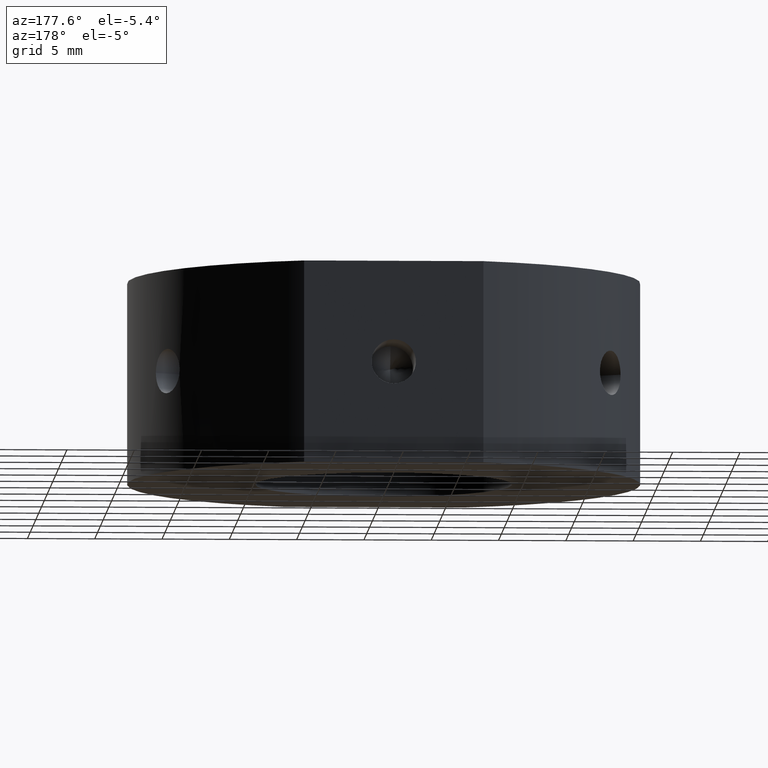
[diagram: clean part render]
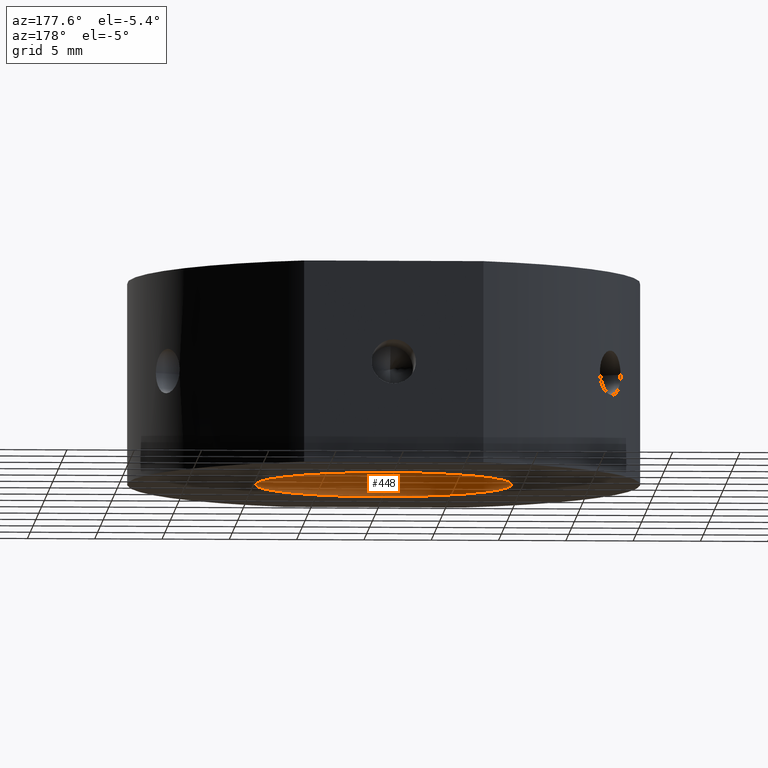
[diagram: same view with one face highlighted and labeled with its STEP entity id]
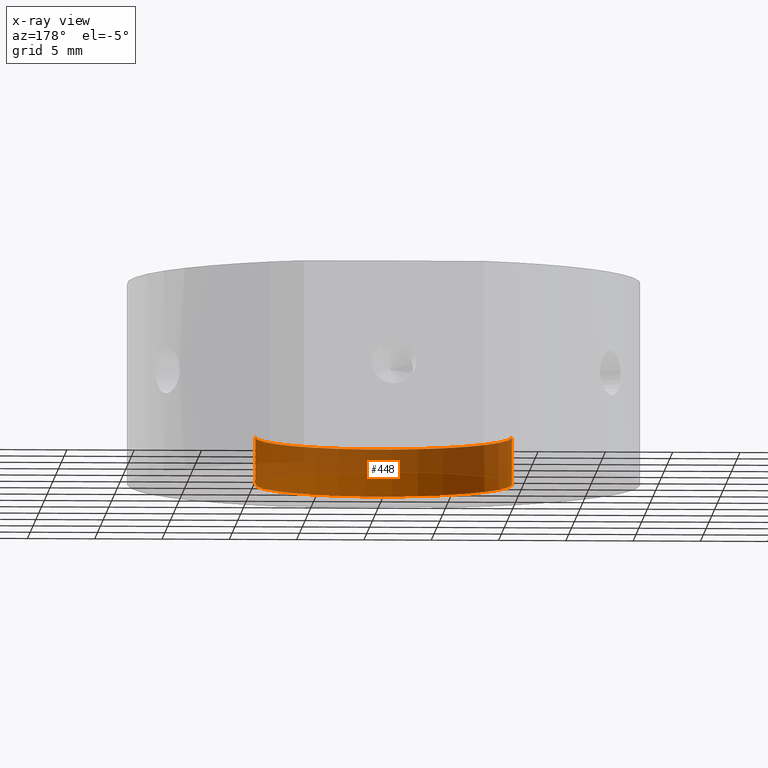
[diagram: x-ray of the same camera — body ghosted, the highlighted face saturated]
A machine part, auxiliary view. The second image highlights one B-rep face of the part: STEP entity #448.
The next image is the same camera in x-ray: the body ghosted, the highlighted face saturated — about 60% of this face is hidden behind the body in this view.
In plain terms, the highlighted cylindrical surface (partial cylindrical patch) has radius 9.525 mm, axis along (-0, -0, -1).
Its self-contained STEP definition (entity closure, byte-faithful):
#1 = CARTESIAN_POINT ( 'NONE',  ( -9.525000000000000400, 0.0000000000000000000, -31.93906810035839800 ) ) ;
#6 = VERTEX_POINT ( 'NONE', #774 ) ;
#29 = AXIS2_PLACEMENT_3D ( 'NONE', #533, #897, #189 ) ;
#40 = DIRECTION ( 'NONE',  ( -1.224646799147350500E-016, -0.0000000000000000000, -1.000000000000000000 ) ) ;
#85 = EDGE_CURVE ( 'NONE', #6, #95, #186, .T. ) ;
#95 = VERTEX_POINT ( 'NONE', #508 ) ;
#171 = ORIENTED_EDGE ( 'NONE', *, *, #235, .F. ) ;
#177 = AXIS2_PLACEMENT_3D ( 'NONE', #220, #198, #813 ) ;
#186 = CIRCLE ( 'NONE', #630, 9.525000000000000400 ) ;
#189 = DIRECTION ( 'NONE',  ( -1.000000000000000000, 0.0000000000000000000, 0.0000000000000000000 ) ) ;
#198 = DIRECTION ( 'NONE',  ( -1.224646799147350500E-016, -0.0000000000000000000, -1.000000000000000000 ) ) ;
#220 = CARTESIAN_POINT ( 'NONE',  ( 2.992922652324802300E-015, 0.0000000000000000000, -7.500000000000003600 ) ) ;
#235 = EDGE_CURVE ( 'NONE', #95, #1039, #831, .T. ) ;
#280 = CARTESIAN_POINT ( 'NONE',  ( 9.525000000000000400, 1.166476076187854000E-015, -31.93906810035839800 ) ) ;
#321 = VERTEX_POINT ( 'NONE', #697 ) ;
#360 = LINE ( 'NONE', #280, #1111 ) ;
#448 = ADVANCED_FACE ( 'NONE', ( #928 ), #1126, .F. ) ;
#487 = VECTOR ( 'NONE', #610, 1000.000000000000000 ) ;
#493 = DIRECTION ( 'NONE',  ( -1.224646799147350500E-016, -0.0000000000000000000, -1.000000000000000000 ) ) ;
#508 = CARTESIAN_POINT ( 'NONE',  ( -9.524999999999996800, 0.0000000000000000000, -4.000000000000002700 ) ) ;
#533 = CARTESIAN_POINT ( 'NONE',  ( 0.0000000000000000000, 0.0000000000000000000, -31.93906810035839800 ) ) ;
#610 = DIRECTION ( 'NONE',  ( -1.224646799147350500E-016, -0.0000000000000000000, -1.000000000000000000 ) ) ;
#630 = AXIS2_PLACEMENT_3D ( 'NONE', #1104, #493, #845 ) ;
#697 = CARTESIAN_POINT ( 'NONE',  ( 9.525000000000003900, 1.166476076187854000E-015, -7.500000000000004400 ) ) ;
#761 = EDGE_CURVE ( 'NONE', #6, #321, #360, .T. ) ;
#774 = CARTESIAN_POINT ( 'NONE',  ( 9.525000000000003900, 1.166476076187854000E-015, -4.000000000000004400 ) ) ;
#800 = ORIENTED_EDGE ( 'NONE', *, *, #846, .T. ) ;
#813 = DIRECTION ( 'NONE',  ( -1.000000000000000000, 0.0000000000000000000, 9.106159978880877400E-017 ) ) ;
#831 = LINE ( 'NONE', #1, #487 ) ;
#845 = DIRECTION ( 'NONE',  ( -1.000000000000000000, 0.0000000000000000000, 9.106159978880877400E-017 ) ) ;
#846 = EDGE_CURVE ( 'NONE', #321, #1039, #885, .T. ) ;
#866 = EDGE_LOOP ( 'NONE', ( #1106, #979, #800, #171 ) ) ;
#885 = CIRCLE ( 'NONE', #177, 9.525000000000000400 ) ;
#897 = DIRECTION ( 'NONE',  ( -1.224646799147350500E-016, -0.0000000000000000000, -1.000000000000000000 ) ) ;
#905 = CARTESIAN_POINT ( 'NONE',  ( -9.524999999999996800, 0.0000000000000000000, -7.500000000000002700 ) ) ;
#928 = FACE_OUTER_BOUND ( 'NONE', #866, .T. ) ;
#979 = ORIENTED_EDGE ( 'NONE', *, *, #761, .T. ) ;
#1039 = VERTEX_POINT ( 'NONE', #905 ) ;
#1104 = CARTESIAN_POINT ( 'NONE',  ( 3.421549032026375300E-015, 0.0000000000000000000, -4.000000000000003600 ) ) ;
#1106 = ORIENTED_EDGE ( 'NONE', *, *, #85, .F. ) ;
#1111 = VECTOR ( 'NONE', #40, 1000.000000000000000 ) ;
#1126 = CYLINDRICAL_SURFACE ( 'NONE', #29, 9.525000000000000400 ) ;